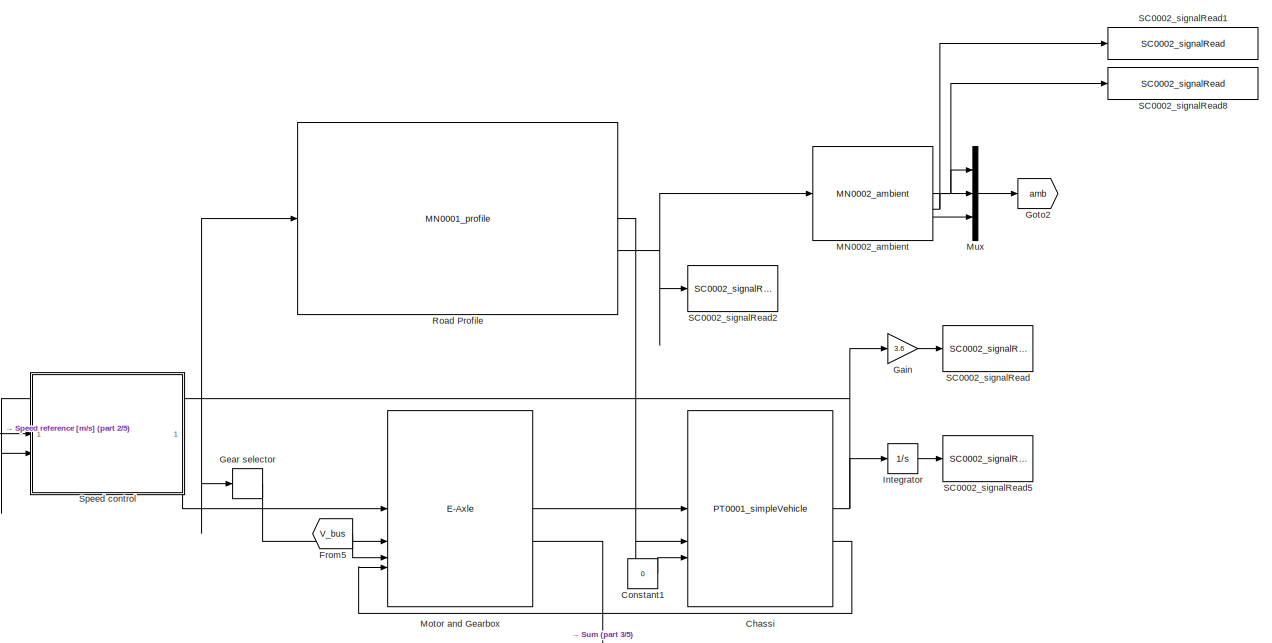
[diagram: root canvas - part 1/5, top right region]
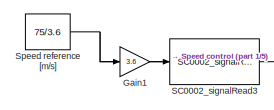
[diagram: root canvas - part 2/5, top center region]
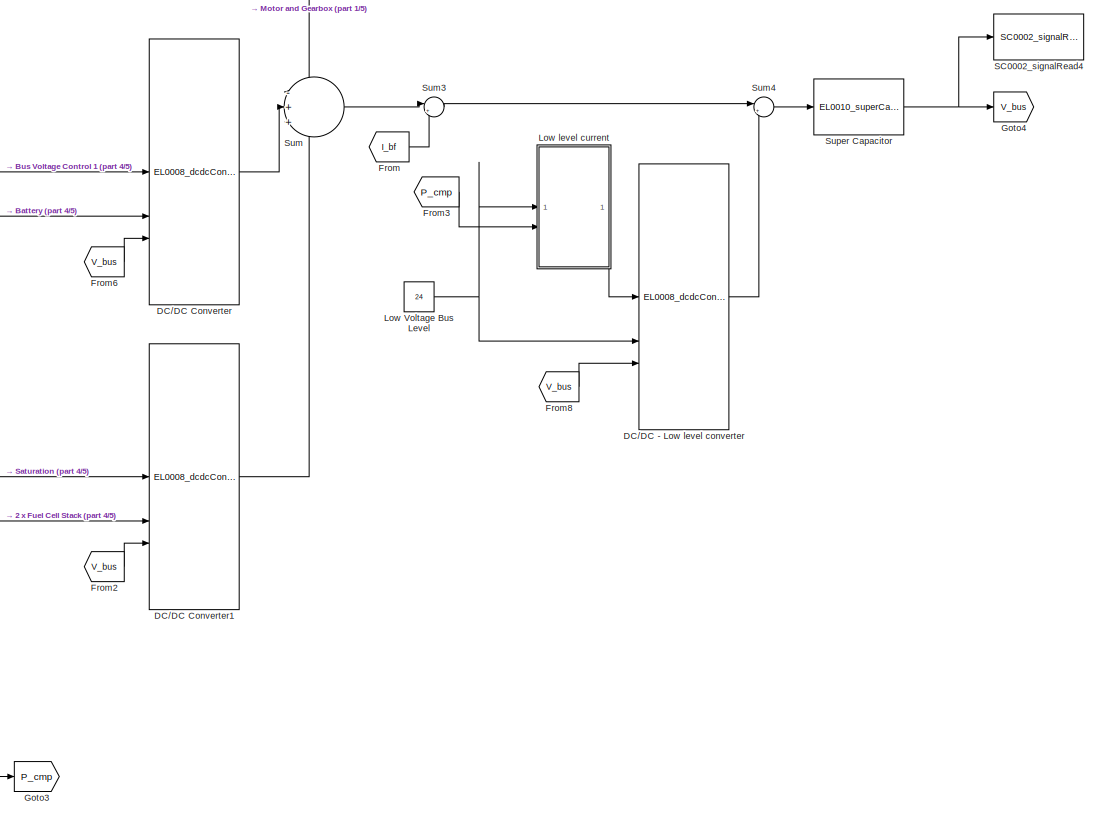
[diagram: root canvas - part 3/5, bottom right region]
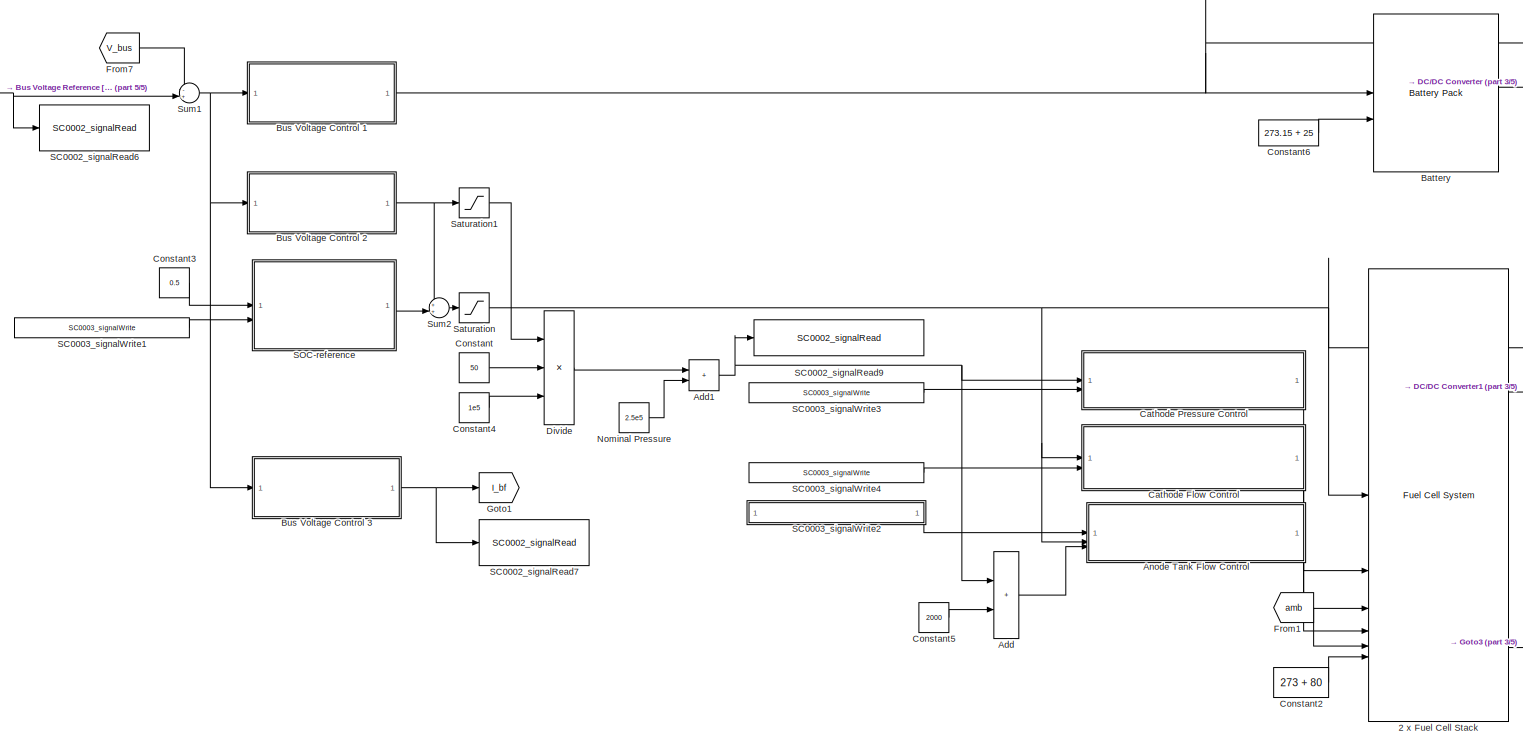
[diagram: root canvas - part 4/5, bottom left region]
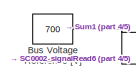
[diagram: root canvas - part 5/5, middle left region]
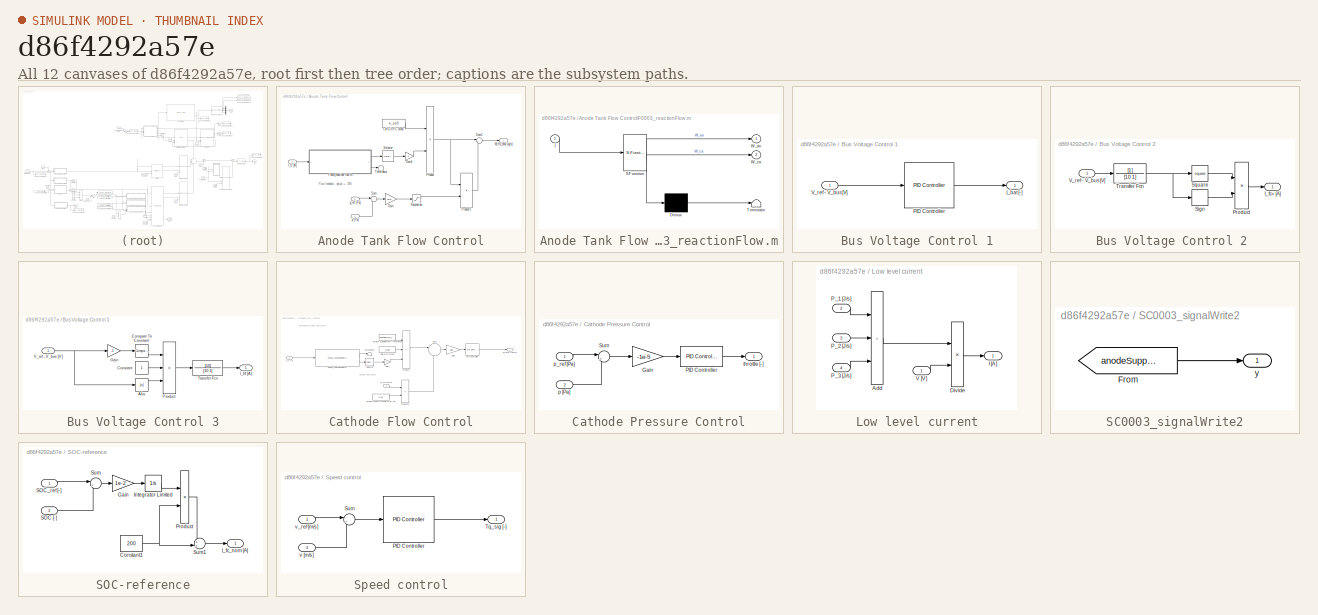
[diagram: thumbnail index - all 12 canvases of the model, root first then tree order]
MODEL slx_d86f4292a57e
KIND model
CONFIG AbsTol = auto
CONFIG EnableMultiTasking = off
CONFIG FixedStep = auto
CONFIG MaxStep = 1e-1
CONFIG MinStep = auto
CONFIG RelTol = 1e-4
CONFIG SampleTimeConstraint = Unconstrained
CONFIG SolverName = ode23tb
CONFIG StartTime = 0.0
CONFIG StopTime = 20e3
BLOCK [Reference] 2 x Fuel Cell Stack  REF=component_lib/Fuel Cell System  (lib defined in slx_7b23c5cf3aa6)
  SourceBlock = component_lib/Fuel Cell System
BLOCK [Sum] Add
  IconShape = rectangular
BLOCK [Sum] Add1
  IconShape = rectangular
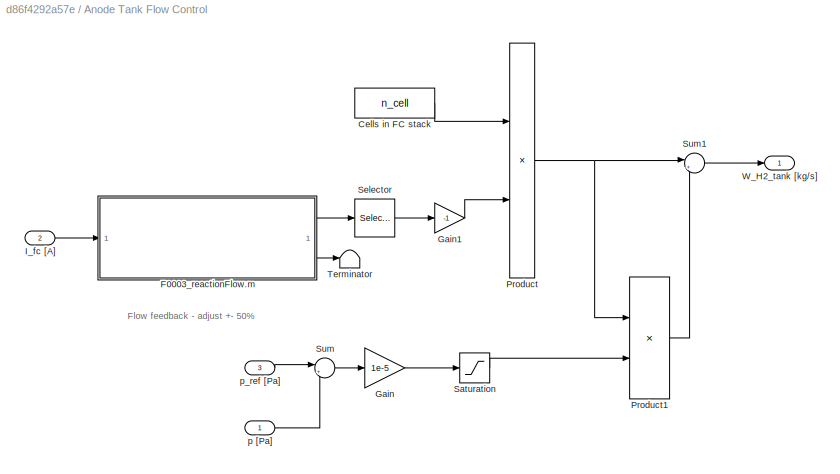
BLOCK [SubSystem] Anode Tank Flow Control
BLOCK [Constant] Anode Tank Flow Control/Cells in FC stack
  Value = n_cell
BLOCK [SubSystem] Anode Tank Flow Control/F0003_reactionFlow.m
  ErrorFcn = Stateflow.Translate.translate
  PermitHierarchicalResolution = ExplicitOnly
  SFBlockType = MATLAB Function
  TreatAsAtomicUnit = on
BLOCK [Demux] Anode Tank Flow Control/F0003_reactionFlow.m/ Demux 
  Outputs = 1
BLOCK [S-Function] Anode Tank Flow Control/F0003_reactionFlow.m/ SFunction 
  EnableBusSupport = on
  FunctionName = sf_sfun
  PortCounts = [1 3]
  SFcnIsStateOwnerBlock = off
  SFunctionDeploymentMode = off
  Tag = Stateflow S-Function 40
BLOCK [Terminator] Anode Tank Flow Control/F0003_reactionFlow.m/ Terminator 
BLOCK [Inport] Anode Tank Flow Control/F0003_reactionFlow.m/I
BLOCK [Outport] Anode Tank Flow Control/F0003_reactionFlow.m/W_an
BLOCK [Outport] Anode Tank Flow Control/F0003_reactionFlow.m/W_ca
  Port = 2
BLOCK [Gain] Anode Tank Flow Control/Gain
  Gain = 1e-5
BLOCK [Gain] Anode Tank Flow Control/Gain1
  Gain = -1
BLOCK [Inport] Anode Tank Flow Control/I_fc [A]
  Port = 2
BLOCK [Product] Anode Tank Flow Control/Product
BLOCK [Product] Anode Tank Flow Control/Product1
BLOCK [Saturate] Anode Tank Flow Control/Saturation
BLOCK [Selector] Anode Tank Flow Control/Selector
  IndexOptions = Index vector (dialog)
  Indices = 1
  InputPortWidth = 4
  OutputSizes = 1
BLOCK [Sum] Anode Tank Flow Control/Sum
  Inputs = |+-
BLOCK [Sum] Anode Tank Flow Control/Sum1
  Inputs = |++
BLOCK [Terminator] Anode Tank Flow Control/Terminator
BLOCK [Outport] Anode Tank Flow Control/W_H2_tank [kg//s]
BLOCK [Inport] Anode Tank Flow Control/p [Pa]
BLOCK [Inport] Anode Tank Flow Control/p_ref [Pa]
  Port = 3
BLOCK [Reference] Battery  REF=component_lib/Battery Pack  (lib defined in slx_7b23c5cf3aa6)
  SourceBlock = component_lib/Battery Pack
BLOCK [SubSystem] Bus Voltage Control 1
BLOCK [Outport] Bus Voltage Control 1/I_bat [-]
BLOCK [Reference] Bus Voltage Control 1/PID Controller  REF=slpidlib/PID Controller
  SourceBlock = slpidlib/PID Controller
  SourceType = PID 1dof
BLOCK [Inport] Bus Voltage Control 1/V_ref - V_bus [V]
BLOCK [SubSystem] Bus Voltage Control 2 
BLOCK [Outport] Bus Voltage Control 2 /I_fc+ [A]
BLOCK [Product] Bus Voltage Control 2 /Product
BLOCK [Signum] Bus Voltage Control 2 /Sign
BLOCK [Math] Bus Voltage Control 2 /Square
  Operator = square
BLOCK [TransferFcn] Bus Voltage Control 2 /Transfer Fcn
  Denominator = [10 1]
BLOCK [Inport] Bus Voltage Control 2 /V_ref - V_bus [V]
BLOCK [SubSystem] Bus Voltage Control 3
BLOCK [Abs] Bus Voltage Control 3/Abs
  SaturateOnIntegerOverflow = off
BLOCK [Reference] Bus Voltage Control 3/Compare To Constant  REF=simulink/Logic and Bit
Operations/Compare
To Constant
  SourceBlock = simulink/Logic and Bit\nOperations/Compare\nTo Constant
  SourceType = Compare To Constant
BLOCK [Constant] Bus Voltage Control 3/Constant
BLOCK [Gain] Bus Voltage Control 3/Gain
  Gain = -1
BLOCK [Outport] Bus Voltage Control 3/I_bf [A]
BLOCK [Product] Bus Voltage Control 3/Product
  Inputs = 3
BLOCK [TransferFcn] Bus Voltage Control 3/Transfer Fcn
  Denominator = [10 1]
  Numerator = [10]
BLOCK [Inport] Bus Voltage Control 3/V_ref - V_bus [V]
BLOCK [Constant] Bus Voltage Reference [V]
  Value = 700
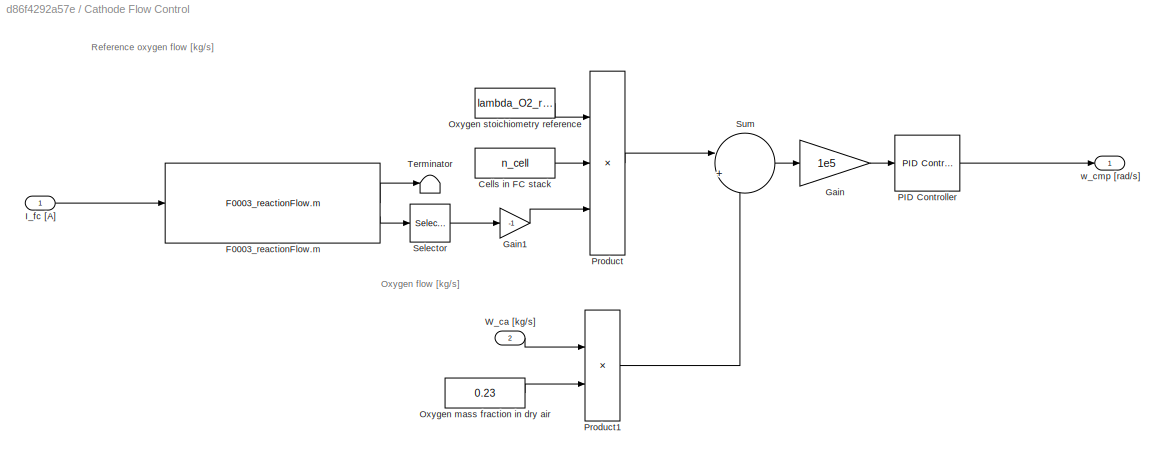
BLOCK [SubSystem] Cathode Flow Control
BLOCK [Constant] Cathode Flow Control/Cells in FC stack
  Value = n_cell
BLOCK [Reference] Cathode Flow Control/F0003_reactionFlow.m  REF=base_lib/F0003_pukrushpan2004/F0003_reactionFlow.m  (lib defined in slx_7545a99fe1f7)
  LibrarySourceBlock = simulink/User-Defined\nFunctions/MATLAB Function
  SourceBlock = base_lib/F0003_pukrushpan2004/F0003_reactionFlow.m
  SourceType = SubSystem
BLOCK [Gain] Cathode Flow Control/Gain
  Gain = 1e5
BLOCK [Gain] Cathode Flow Control/Gain1
  Gain = -1
BLOCK [Inport] Cathode Flow Control/I_fc [A]
BLOCK [Constant] Cathode Flow Control/Oxygen mass fraction in dry air
  Value = 0.23
BLOCK [Constant] Cathode Flow Control/Oxygen stoichiometry reference
  Value = lambda_O2_ref
BLOCK [Reference] Cathode Flow Control/PID Controller  REF=slpidlib/PID Controller
  SourceBlock = slpidlib/PID Controller
  SourceType = PID 1dof
BLOCK [Product] Cathode Flow Control/Product
  Inputs = 3
BLOCK [Product] Cathode Flow Control/Product1
BLOCK [Selector] Cathode Flow Control/Selector
  IndexOptions = Index vector (dialog)
  Indices = 2
  InputPortWidth = 4
  OutputSizes = 1
BLOCK [Sum] Cathode Flow Control/Sum
  Inputs = |+-
BLOCK [Terminator] Cathode Flow Control/Terminator
BLOCK [Inport] Cathode Flow Control/W_ca [kg//s]
  Port = 2
BLOCK [Outport] Cathode Flow Control/w_cmp [rad//s]
BLOCK [SubSystem] Cathode Pressure Control
BLOCK [Gain] Cathode Pressure Control/Gain
  Gain = -1e-5
BLOCK [Reference] Cathode Pressure Control/PID Controller  REF=slpidlib/PID Controller
  SourceBlock = slpidlib/PID Controller
  SourceType = PID 1dof
BLOCK [Sum] Cathode Pressure Control/Sum
  Inputs = |+-
BLOCK [Inport] Cathode Pressure Control/p [Pa]
  Port = 2
BLOCK [Inport] Cathode Pressure Control/p_ref [Pa]
BLOCK [Outport] Cathode Pressure Control/throttle [-]
BLOCK [Reference] Chassi  REF=component_lib/Powertrain/PT0001_simpleVehicle  (lib defined in slx_7b23c5cf3aa6)
  SourceBlock = component_lib/Powertrain/PT0001_simpleVehicle
BLOCK [Constant] Constant
  Value = 50
BLOCK [Constant] Constant1
  Value = 0
BLOCK [Constant] Constant2
  Value = 273 + 80
BLOCK [Constant] Constant3
  Value = 0.5
BLOCK [Constant] Constant4
  Value = 1e5
BLOCK [Constant] Constant5
  Value = 2000
BLOCK [Constant] Constant6
  Value = 273.15 + 25
BLOCK [Reference] DC//DC - Low level converter  REF=component_lib/Electrochemistry/EL0008_dcdcConverter  (lib defined in slx_7b23c5cf3aa6)
  SourceBlock = component_lib/Electrochemistry/EL0008_dcdcConverter
BLOCK [Reference] DC//DC Converter  REF=component_lib/Electrochemistry/EL0008_dcdcConverter  (lib defined in slx_7b23c5cf3aa6)
  SourceBlock = component_lib/Electrochemistry/EL0008_dcdcConverter
BLOCK [Reference] DC//DC Converter1  REF=component_lib/Electrochemistry/EL0008_dcdcConverter  (lib defined in slx_7b23c5cf3aa6)
  SourceBlock = component_lib/Electrochemistry/EL0008_dcdcConverter
BLOCK [Product] Divide
  Inputs = */*
BLOCK [From] From
  GotoTag = I_bf
BLOCK [From] From1
  GotoTag = amb
BLOCK [From] From2
  GotoTag = V_bus
BLOCK [From] From3
  GotoTag = P_cmp
BLOCK [From] From5
  GotoTag = V_bus
BLOCK [From] From6
  GotoTag = V_bus
BLOCK [From] From7
  GotoTag = V_bus
BLOCK [From] From8
  GotoTag = V_bus
BLOCK [Gain] Gain
  Gain = 3.6
BLOCK [Gain] Gain1
  Gain = 3.6
BLOCK [Relay] Gear selector
  OffOutputValue = 3
  OffSwitchValue = 21.5
  OnOutputValue = 4
  OnSwitchValue = 22
BLOCK [Goto] Goto1
  GotoTag = I_bf
BLOCK [Goto] Goto2
  GotoTag = amb
BLOCK [Goto] Goto3
  GotoTag = P_cmp
BLOCK [Goto] Goto4
  GotoTag = V_bus
BLOCK [Integrator] Integrator
BLOCK [Constant] Low Voltage Bus Level
  Value = 24
BLOCK [SubSystem] Low level current
BLOCK [Sum] Low level current/Add
  IconShape = rectangular
  Inputs = +++
BLOCK [Product] Low level current/Divide
  Inputs = */
BLOCK [Outport] Low level current/I [A]
BLOCK [Inport] Low level current/P_1 [J//s]
  Port = 2
BLOCK [Inport] Low level current/P_2 [J//s]
  Port = 3
BLOCK [Inport] Low level current/P_3 [J//s]
  Port = 4
BLOCK [Inport] Low level current/V [V]
BLOCK [Reference] MN0002_ambient  REF=component_lib/Mission/MN0002_ambient  (lib defined in slx_7b23c5cf3aa6)
  SourceBlock = component_lib/Mission/MN0002_ambient
BLOCK [Reference] Motor and Gearbox  REF=component_lib/E-Axle  (lib defined in slx_7b23c5cf3aa6)
  SourceBlock = component_lib/E-Axle
BLOCK [Mux] Mux
  DisplayOption = bar
  Inputs = 3
BLOCK [Constant] Nominal Pressure
  Value = 2.5e5
BLOCK [Reference] Road Profile  REF=component_lib/Mission/MN0001_profile  (lib defined in slx_7b23c5cf3aa6)
  SourceBlock = component_lib/Mission/MN0001_profile
BLOCK [Reference] SC0002_signalRead  REF=component_lib/Data & Control/SC0002_signalRead  (lib defined in slx_7b23c5cf3aa6)
  SourceBlock = component_lib/Data & Control/SC0002_signalRead
BLOCK [Reference] SC0002_signalRead1  REF=component_lib/Data & Control/SC0002_signalRead  (lib defined in slx_7b23c5cf3aa6)
  SourceBlock = component_lib/Data & Control/SC0002_signalRead
BLOCK [Reference] SC0002_signalRead2  REF=component_lib/Data & Control/SC0002_signalRead  (lib defined in slx_7b23c5cf3aa6)
  SourceBlock = component_lib/Data & Control/SC0002_signalRead
BLOCK [Reference] SC0002_signalRead3  REF=component_lib/Data & Control/SC0002_signalRead  (lib defined in slx_7b23c5cf3aa6)
  SourceBlock = component_lib/Data & Control/SC0002_signalRead
BLOCK [Reference] SC0002_signalRead4  REF=component_lib/Data & Control/SC0002_signalRead  (lib defined in slx_7b23c5cf3aa6)
  SourceBlock = component_lib/Data & Control/SC0002_signalRead
BLOCK [Reference] SC0002_signalRead5  REF=component_lib/Data & Control/SC0002_signalRead  (lib defined in slx_7b23c5cf3aa6)
  SourceBlock = component_lib/Data & Control/SC0002_signalRead
BLOCK [Reference] SC0002_signalRead6  REF=component_lib/Data & Control/SC0002_signalRead  (lib defined in slx_7b23c5cf3aa6)
  SourceBlock = component_lib/Data & Control/SC0002_signalRead
BLOCK [Reference] SC0002_signalRead7  REF=component_lib/Data & Control/SC0002_signalRead  (lib defined in slx_7b23c5cf3aa6)
  SourceBlock = component_lib/Data & Control/SC0002_signalRead
BLOCK [Reference] SC0002_signalRead8  REF=component_lib/Data & Control/SC0002_signalRead  (lib defined in slx_7b23c5cf3aa6)
  SourceBlock = component_lib/Data & Control/SC0002_signalRead
BLOCK [Reference] SC0002_signalRead9  REF=component_lib/Data & Control/SC0002_signalRead  (lib defined in slx_7b23c5cf3aa6)
  SourceBlock = component_lib/Data & Control/SC0002_signalRead
BLOCK [Reference] SC0003_signalWrite1  REF=component_lib/Data & Control/SC0003_signalWrite  (lib defined in slx_7b23c5cf3aa6)
  SourceBlock = component_lib/Data & Control/SC0003_signalWrite
BLOCK [SubSystem] SC0003_signalWrite2
  AncestorBlock = component_lib/Data & Control/SC0003_signalWrite
  LibrarySourceBlock = component_lib/Data & Control/SC0003_signalWrite
BLOCK [From] SC0003_signalWrite2/From
  GotoTag = anodeSupplyPressure
  TagVisibility = global
BLOCK [Outport] SC0003_signalWrite2/y
BLOCK [Reference] SC0003_signalWrite3  REF=component_lib/Data & Control/SC0003_signalWrite  (lib defined in slx_7b23c5cf3aa6)
  SourceBlock = component_lib/Data & Control/SC0003_signalWrite
BLOCK [Reference] SC0003_signalWrite4  REF=component_lib/Data & Control/SC0003_signalWrite  (lib defined in slx_7b23c5cf3aa6)
  SourceBlock = component_lib/Data & Control/SC0003_signalWrite
BLOCK [SubSystem] SOC-reference
BLOCK [Constant] SOC-reference/Constant1
  Value = 200
BLOCK [Gain] SOC-reference/Gain
  Gain = 1e-2
BLOCK [Outport] SOC-reference/I_fc_nom [A]
BLOCK [Integrator] SOC-reference/Integrator Limited
  LimitOutput = on
  LowerSaturationLimit = -1
  UpperSaturationLimit = 1
BLOCK [Product] SOC-reference/Product
BLOCK [Inport] SOC-reference/SOC [-]
  Port = 2
BLOCK [Inport] SOC-reference/SOC_ref [-]
BLOCK [Sum] SOC-reference/Sum
  Inputs = |+-
BLOCK [Sum] SOC-reference/Sum1
  Inputs = ++|
BLOCK [Saturate] Saturation
  LowerLimit = 20
  UpperLimit = 600
BLOCK [Saturate] Saturation1
  LowerLimit = 0
  UpperLimit = 50
BLOCK [SubSystem] Speed control
BLOCK [Reference] Speed control/PID Controller  REF=slpidlib/PID Controller
  SourceBlock = slpidlib/PID Controller
  SourceType = PID 1dof
BLOCK [Sum] Speed control/Sum
  Inputs = |+-
BLOCK [Outport] Speed control/Tq_sig [-]
BLOCK [Inport] Speed control/v [m//s]
  Port = 2
BLOCK [Inport] Speed control/v_ref [m//s]
BLOCK [Constant] Speed reference [m//s]
  Value = 75/3.6
BLOCK [Sum] Sum
  Inputs = -++
BLOCK [Sum] Sum1
  Inputs = -+|
BLOCK [Sum] Sum2
  Inputs = ++|
BLOCK [Sum] Sum3
  Inputs = |+-
BLOCK [Sum] Sum4
  Inputs = |+-
BLOCK [Reference] Super Capacitor  REF=component_lib/Electrochemistry/EL0010_superCapacitor  (lib defined in slx_7b23c5cf3aa6)
  SourceBlock = component_lib/Electrochemistry/EL0010_superCapacitor
ANNOTATION Anode Tank Flow Control: Flow feedback - adjust +- 50%
ANNOTATION Cathode Flow Control: Oxygen flow [kg/s]
ANNOTATION Cathode Flow Control: Reference oxygen flow [kg/s]
LINE 2 x Fuel Cell Stack:1 -> DC//DC Converter1:2
LINE 2 x Fuel Cell Stack:3 -> Goto3:1
NET Add1:1 -> Add:1, Cathode Pressure Control:1, SC0002_signalRead9:1
LINE Add:1 -> Anode Tank Flow Control:3
LINE Anode Tank Flow Control/Cells in FC stack:1 -> Anode Tank Flow Control/Product:1
LINE Anode Tank Flow Control/F0003_reactionFlow.m:1 -> Anode Tank Flow Control/Selector:1
LINE Anode Tank Flow Control/F0003_reactionFlow.m:2 -> Anode Tank Flow Control/Terminator:1
LINE Anode Tank Flow Control/Gain1:1 -> Anode Tank Flow Control/Product:2
LINE Anode Tank Flow Control/Gain:1 -> Anode Tank Flow Control/Saturation:1
LINE Anode Tank Flow Control/I_fc [A]:1 -> Anode Tank Flow Control/F0003_reactionFlow.m:1
LINE Anode Tank Flow Control/Product1:1 -> Anode Tank Flow Control/Sum1:2
NET Anode Tank Flow Control/Product:1 -> Anode Tank Flow Control/Product1:1, Anode Tank Flow Control/Sum1:1
LINE Anode Tank Flow Control/Saturation:1 -> Anode Tank Flow Control/Product1:2
LINE Anode Tank Flow Control/Selector:1 -> Anode Tank Flow Control/Gain1:1
LINE Anode Tank Flow Control/Sum1:1 -> Anode Tank Flow Control/W_H2_tank [kg//s]:1
LINE Anode Tank Flow Control/Sum:1 -> Anode Tank Flow Control/Gain:1
LINE Anode Tank Flow Control/p [Pa]:1 -> Anode Tank Flow Control/Sum:2
LINE Anode Tank Flow Control/p_ref [Pa]:1 -> Anode Tank Flow Control/Sum:1
LINE Anode Tank Flow Control:1 -> 2 x Fuel Cell Stack:4
LINE Battery:1 -> DC//DC Converter:2
LINE Bus Voltage Control 1/PID Controller:1 -> Bus Voltage Control 1/I_bat [-]:1
LINE Bus Voltage Control 1/V_ref - V_bus [V]:1 -> Bus Voltage Control 1/PID Controller:1
NET Bus Voltage Control 1:1 -> Battery:1, DC//DC Converter:1
LINE Bus Voltage Control 2 /Product:1 -> Bus Voltage Control 2 /I_fc+ [A]:1
LINE Bus Voltage Control 2 /Sign:1 -> Bus Voltage Control 2 /Product:2
LINE Bus Voltage Control 2 /Square:1 -> Bus Voltage Control 2 /Product:1
NET Bus Voltage Control 2 /Transfer Fcn:1 -> Bus Voltage Control 2 /Sign:1, Bus Voltage Control 2 /Square:1
LINE Bus Voltage Control 2 /V_ref - V_bus [V]:1 -> Bus Voltage Control 2 /Transfer Fcn:1
NET Bus Voltage Control 2 :1 -> Saturation1:1, Sum2:1
LINE Bus Voltage Control 3/Abs:1 -> Bus Voltage Control 3/Product:3
LINE Bus Voltage Control 3/Compare To Constant:1 -> Bus Voltage Control 3/Product:1
LINE Bus Voltage Control 3/Constant:1 -> Bus Voltage Control 3/Product:2
LINE Bus Voltage Control 3/Gain:1 -> Bus Voltage Control 3/Compare To Constant:1
LINE Bus Voltage Control 3/Product:1 -> Bus Voltage Control 3/Transfer Fcn:1
LINE Bus Voltage Control 3/Transfer Fcn:1 -> Bus Voltage Control 3/I_bf [A]:1
NET Bus Voltage Control 3/V_ref - V_bus [V]:1 -> Bus Voltage Control 3/Abs:1, Bus Voltage Control 3/Gain:1
NET Bus Voltage Control 3:1 -> Goto1:1, SC0002_signalRead7:1
NET Bus Voltage Reference [V]:1 -> SC0002_signalRead6:1, Sum1:2
LINE Cathode Flow Control/Cells in FC stack:1 -> Cathode Flow Control/Product:2
LINE Cathode Flow Control/F0003_reactionFlow.m:1 -> Cathode Flow Control/Terminator:1
LINE Cathode Flow Control/F0003_reactionFlow.m:2 -> Cathode Flow Control/Selector:1
LINE Cathode Flow Control/Gain1:1 -> Cathode Flow Control/Product:3
LINE Cathode Flow Control/Gain:1 -> Cathode Flow Control/PID Controller:1
LINE Cathode Flow Control/I_fc [A]:1 -> Cathode Flow Control/F0003_reactionFlow.m:1
LINE Cathode Flow Control/Oxygen mass fraction in dry air:1 -> Cathode Flow Control/Product1:2
LINE Cathode Flow Control/Oxygen stoichiometry reference:1 -> Cathode Flow Control/Product:1
LINE Cathode Flow Control/PID Controller:1 -> Cathode Flow Control/w_cmp [rad//s]:1
LINE Cathode Flow Control/Product1:1 -> Cathode Flow Control/Sum:2
LINE Cathode Flow Control/Product:1 -> Cathode Flow Control/Sum:1
LINE Cathode Flow Control/Selector:1 -> Cathode Flow Control/Gain1:1
LINE Cathode Flow Control/Sum:1 -> Cathode Flow Control/Gain:1
LINE Cathode Flow Control/W_ca [kg//s]:1 -> Cathode Flow Control/Product1:1
LINE Cathode Flow Control:1 -> 2 x Fuel Cell Stack:3
LINE Cathode Pressure Control/Gain:1 -> Cathode Pressure Control/PID Controller:1
LINE Cathode Pressure Control/PID Controller:1 -> Cathode Pressure Control/throttle [-]:1
LINE Cathode Pressure Control/Sum:1 -> Cathode Pressure Control/Gain:1
LINE Cathode Pressure Control/p [Pa]:1 -> Cathode Pressure Control/Sum:2
LINE Cathode Pressure Control/p_ref [Pa]:1 -> Cathode Pressure Control/Sum:1
LINE Cathode Pressure Control:1 -> 2 x Fuel Cell Stack:2
NET Chassi:1 -> Gain:1, Gear selector:1, Integrator:1, Road Profile:1, Speed control:2
LINE Chassi:2 -> Motor and Gearbox:4
LINE Constant1:1 -> Chassi:3
LINE Constant2:1 -> 2 x Fuel Cell Stack:6
LINE Constant3:1 -> SOC-reference:1
LINE Constant4:1 -> Divide:3
LINE Constant5:1 -> Add:2
LINE Constant6:1 -> Battery:2
LINE Constant:1 -> Divide:2
LINE DC//DC - Low level converter:1 -> Sum4:2
LINE DC//DC Converter1:1 -> Sum:3
LINE DC//DC Converter:1 -> Sum:2
LINE Divide:1 -> Add1:1
LINE From1:1 -> 2 x Fuel Cell Stack:5
LINE From2:1 -> DC//DC Converter1:3
LINE From3:1 -> Low level current:2
LINE From5:1 -> Motor and Gearbox:3
LINE From6:1 -> DC//DC Converter:3
LINE From7:1 -> Sum1:1
LINE From8:1 -> DC//DC - Low level converter:3
LINE From:1 -> Sum3:2
LINE Gain1:1 -> SC0002_signalRead3:1
LINE Gain:1 -> SC0002_signalRead:1
LINE Gear selector:1 -> Motor and Gearbox:2
LINE Integrator:1 -> SC0002_signalRead5:1
NET Low Voltage Bus Level:1 -> DC//DC - Low level converter:2, Low level current:1
LINE Low level current/Add:1 -> Low level current/Divide:1
LINE Low level current/Divide:1 -> Low level current/I [A]:1
LINE Low level current/P_1 [J//s]:1 -> Low level current/Add:1
LINE Low level current/P_2 [J//s]:1 -> Low level current/Add:2
LINE Low level current/P_3 [J//s]:1 -> Low level current/Add:3
LINE Low level current/V [V]:1 -> Low level current/Divide:2
LINE Low level current:1 -> DC//DC - Low level converter:1
NET MN0002_ambient:1 -> Mux:1, SC0002_signalRead8:1
NET MN0002_ambient:2 -> Mux:2, SC0002_signalRead1:1
LINE MN0002_ambient:3 -> Mux:3
LINE Motor and Gearbox:1 -> Chassi:1
LINE Motor and Gearbox:2 -> Sum:1
LINE Mux:1 -> Goto2:1
LINE Nominal Pressure:1 -> Add1:2
LINE Road Profile:1 -> Chassi:2
NET Road Profile:2 -> MN0002_ambient:1, SC0002_signalRead2:1
LINE SC0003_signalWrite1:1 -> SOC-reference:2
LINE SC0003_signalWrite2:1 -> Anode Tank Flow Control:1
LINE SC0003_signalWrite3:1 -> Cathode Pressure Control:2
LINE SC0003_signalWrite4:1 -> Cathode Flow Control:2
NET SOC-reference/Constant1:1 -> SOC-reference/Product:2, SOC-reference/Sum1:2
LINE SOC-reference/Gain:1 -> SOC-reference/Integrator Limited:1
LINE SOC-reference/Integrator Limited:1 -> SOC-reference/Product:1
LINE SOC-reference/Product:1 -> SOC-reference/Sum1:1
LINE SOC-reference/SOC [-]:1 -> SOC-reference/Sum:2
LINE SOC-reference/SOC_ref [-]:1 -> SOC-reference/Sum:1
LINE SOC-reference/Sum1:1 -> SOC-reference/I_fc_nom [A]:1
LINE SOC-reference/Sum:1 -> SOC-reference/Gain:1
LINE SOC-reference:1 -> Sum2:2
LINE Saturation1:1 -> Divide:1
NET Saturation:1 -> 2 x Fuel Cell Stack:1, Anode Tank Flow Control:2, Cathode Flow Control:1, DC//DC Converter1:1
LINE Speed control/PID Controller:1 -> Speed control/Tq_sig [-]:1
LINE Speed control/Sum:1 -> Speed control/PID Controller:1
LINE Speed control/v [m//s]:1 -> Speed control/Sum:2
LINE Speed control/v_ref [m//s]:1 -> Speed control/Sum:1
LINE Speed control:1 -> Motor and Gearbox:1
NET Speed reference [m//s]:1 -> Gain1:1, Speed control:1
NET Sum1:1 -> Bus Voltage Control 1:1, Bus Voltage Control 2 :1, Bus Voltage Control 3:1
LINE Sum2:1 -> Saturation:1
LINE Sum3:1 -> Sum4:1
LINE Sum4:1 -> Super Capacitor:1
LINE Sum:1 -> Sum3:1
NET Super Capacitor:1 -> Goto4:1, SC0002_signalRead4:1
note: NET lines group one-source signal fan-out (src -> all destinations, sorted); 1:1 wires keep LINE
CHART Anode Tank Flow Control/F0003_reactionFlow.m states=1 transitions=1
  STATE_LABEL 'eML_blk_kernel()'
  STATE_LABEL 'SCRIPT:\nfunction [W_an, W_ca] = F0003_reactionFlow(I)\n% constants\nF     = 96485; % [C/mol]  - Faradays constant\nM_H2  = 0.002; % [kg/mol] - hydrogen molecular weight\nM_O2  = 0.032; % [kg/mol] - oxygen   molecular weight\n% M_N2  = 0.028; % [kg/mol] - nitrogen molecular weight\nM_H2O = 0.018; % [kg/mol] - water    molecular weight\n\n% reaction flows\nW_H2_rct  = I * M_H2  /(2*F);\nW_O2_rct  = I * M_O2  ...<+142ch>'
CHART  states=0 transitions=0
